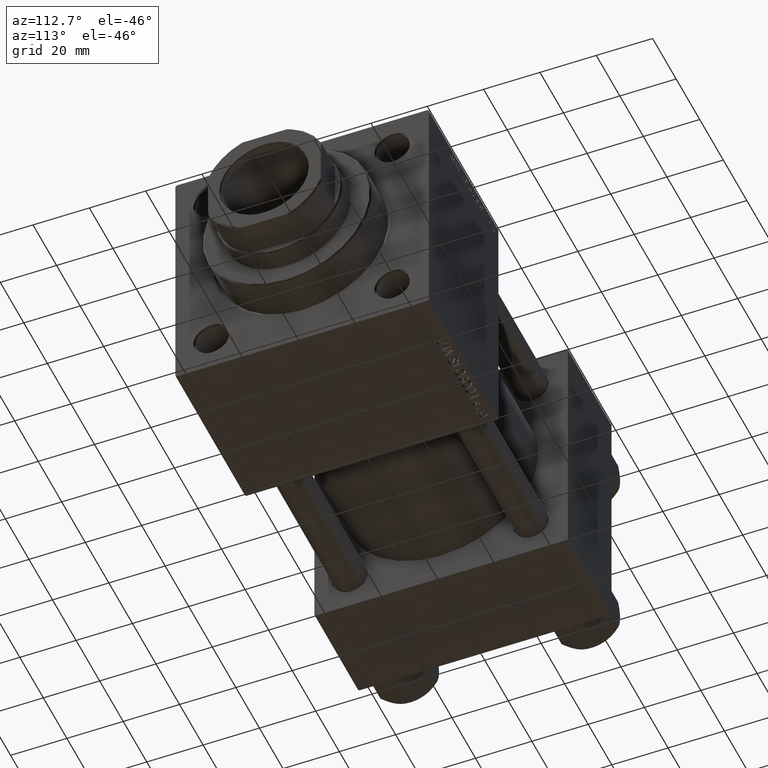
[diagram: clean part render]
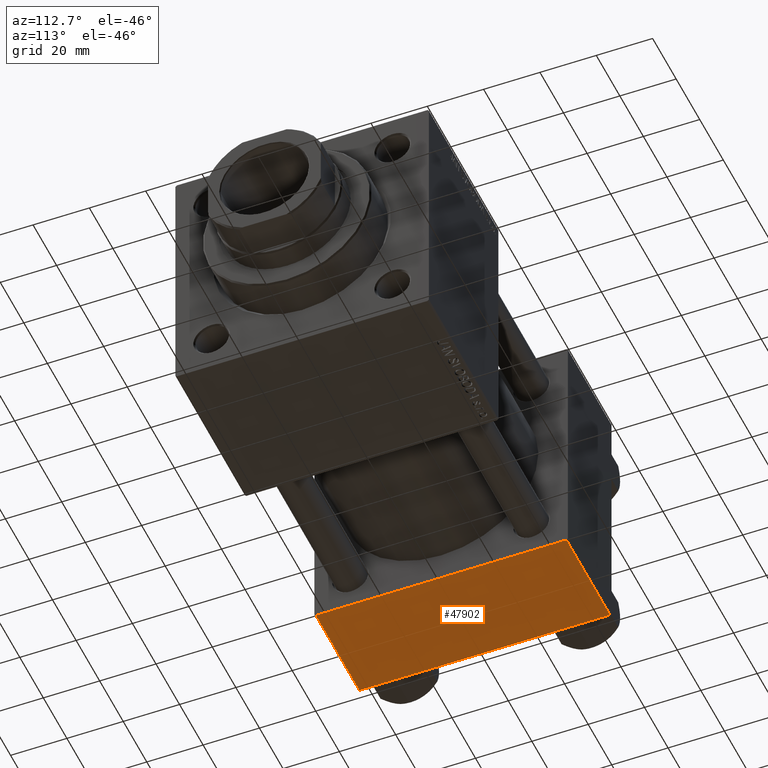
[diagram: same view with one face highlighted and labeled with its STEP entity id]
A machine part, auxiliary view. The second image highlights one B-rep face of the part: STEP entity #47902.
In plain terms, the highlighted planar face has unit normal (0, 0, -1).
Its self-contained STEP definition (entity closure, byte-faithful):
#1442 = VERTEX_POINT ( 'NONE', #18948 ) ;
#2594 = DIRECTION ( 'NONE',  ( 0.000000000000000000, -1.000000000000000000, -1.541976423090495633E-16 ) ) ;
#3807 = EDGE_CURVE ( 'NONE', #25389, #32495, #6225, .T. ) ;
#6225 = LINE ( 'NONE', #13347, #18405 ) ;
#7223 = VECTOR ( 'NONE', #2594, 1000.000000000000000 ) ;
#8854 = LINE ( 'NONE', #20492, #28360 ) ;
#10495 = CARTESIAN_POINT ( 'NONE',  ( 0.000000000000000000, -44.49999999999995737, -45.00000000000000000 ) ) ;
#11395 = EDGE_CURVE ( 'NONE', #1442, #47016, #29460, .T. ) ;
#12241 = DIRECTION ( 'NONE',  ( -1.000000000000000000, 0.000000000000000000, 0.000000000000000000 ) ) ;
#13347 = CARTESIAN_POINT ( 'NONE',  ( 0.000000000000000000, 44.99999999999998579, -44.99999999999998579 ) ) ;
#14103 = DIRECTION ( 'NONE',  ( 0.000000000000000000, 1.000000000000000000, 1.541976423090495880E-16 ) ) ;
#15775 = EDGE_LOOP ( 'NONE', ( #33117, #43254, #49166, #30730 ) ) ;
#17281 = CARTESIAN_POINT ( 'NONE',  ( 0.000000000000000000, 44.49999999999998579, -44.99999999999998579 ) ) ;
#18405 = VECTOR ( 'NONE', #40712, 1000.000000000000000 ) ;
#18644 = CARTESIAN_POINT ( 'NONE',  ( 37.00000000000000000, 44.99999999999998579, -44.99999999999998579 ) ) ;
#18948 = CARTESIAN_POINT ( 'NONE',  ( 37.00000000000000000, 44.49999999999998579, -44.99999999999998579 ) ) ;
#20492 = CARTESIAN_POINT ( 'NONE',  ( 37.00000000000000000, 44.49999999999998579, -44.99999999999998579 ) ) ;
#22179 = CARTESIAN_POINT ( 'NONE',  ( 37.00000000000000000, -44.49999999999995737, -45.00000000000000000 ) ) ;
#22264 = AXIS2_PLACEMENT_3D ( 'NONE', #18644, #33615, #14103 ) ;
#22578 = CARTESIAN_POINT ( 'NONE',  ( 37.00000000000000000, 44.99999999999998579, -44.99999999999998579 ) ) ;
#24699 = EDGE_CURVE ( 'NONE', #25389, #1442, #8854, .T. ) ;
#25389 = VERTEX_POINT ( 'NONE', #17281 ) ;
#28360 = VECTOR ( 'NONE', #32424, 1000.000000000000000 ) ;
#29460 = LINE ( 'NONE', #22578, #7223 ) ;
#30730 = ORIENTED_EDGE ( 'NONE', *, *, #35661, .T. ) ;
#32424 = DIRECTION ( 'NONE',  ( 1.000000000000000000, 0.000000000000000000, 0.000000000000000000 ) ) ;
#32495 = VERTEX_POINT ( 'NONE', #10495 ) ;
#33117 = ORIENTED_EDGE ( 'NONE', *, *, #3807, .F. ) ;
#33615 = DIRECTION ( 'NONE',  ( 0.000000000000000000, 1.541976423090495880E-16, -1.000000000000000000 ) ) ;
#35661 = EDGE_CURVE ( 'NONE', #47016, #32495, #47726, .T. ) ;
#37666 = FACE_OUTER_BOUND ( 'NONE', #15775, .T. ) ;
#40712 = DIRECTION ( 'NONE',  ( 0.000000000000000000, -1.000000000000000000, -1.541976423090495633E-16 ) ) ;
#42907 = CARTESIAN_POINT ( 'NONE',  ( 0.000000000000000000, -44.49999999999998579, -45.00000000000000000 ) ) ;
#43254 = ORIENTED_EDGE ( 'NONE', *, *, #24699, .T. ) ;
#45585 = VECTOR ( 'NONE', #12241, 1000.000000000000000 ) ;
#47016 = VERTEX_POINT ( 'NONE', #22179 ) ;
#47726 = LINE ( 'NONE', #42907, #45585 ) ;
#47902 = ADVANCED_FACE ( 'NONE', ( #37666 ), #49814, .T. ) ;
#49166 = ORIENTED_EDGE ( 'NONE', *, *, #11395, .T. ) ;
#49814 = PLANE ( 'NONE',  #22264 ) ;